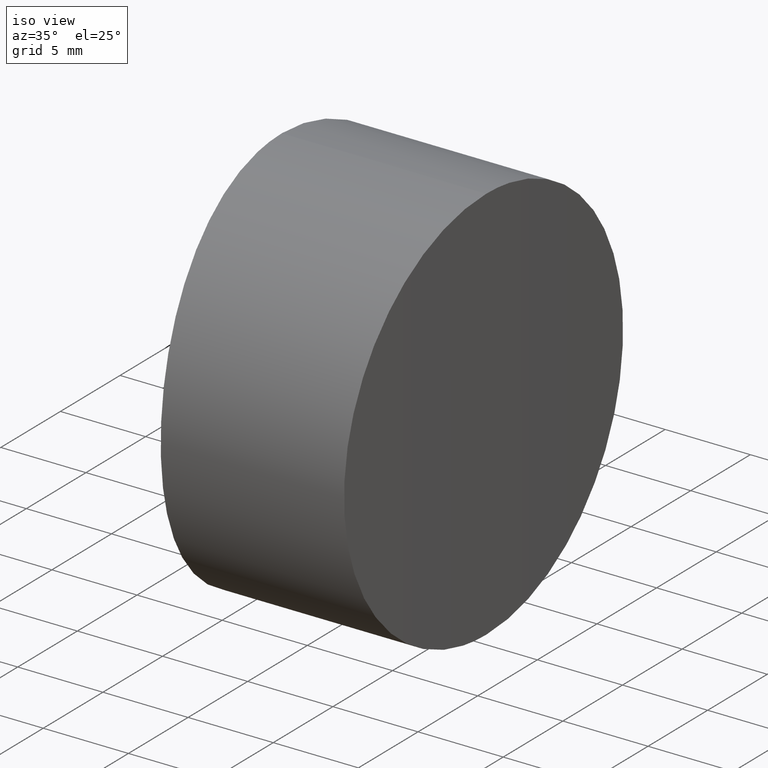
[diagram: clean part render]
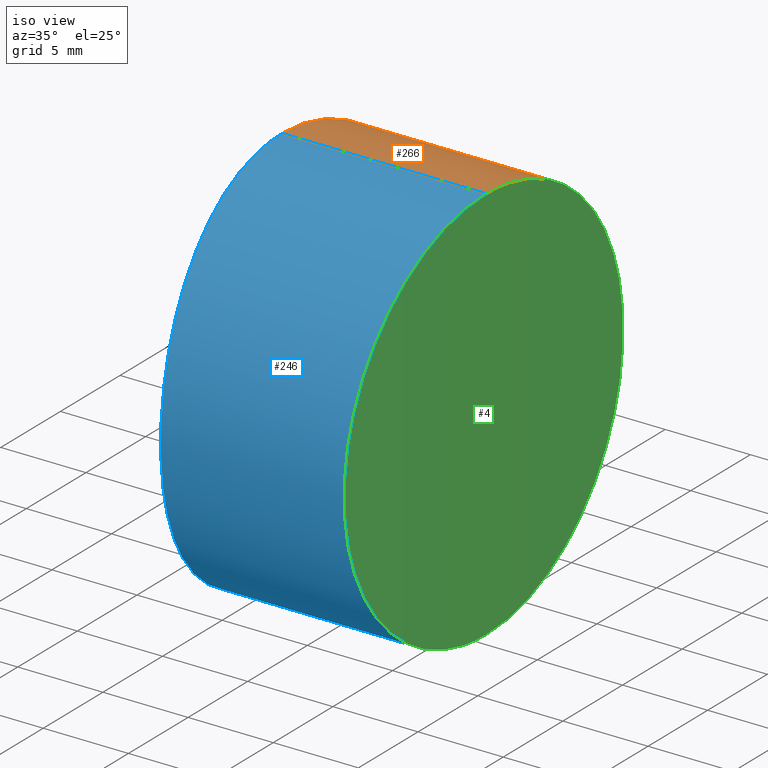
[diagram: same view with three faces highlighted in distinct colors, each labeled with its STEP entity id]
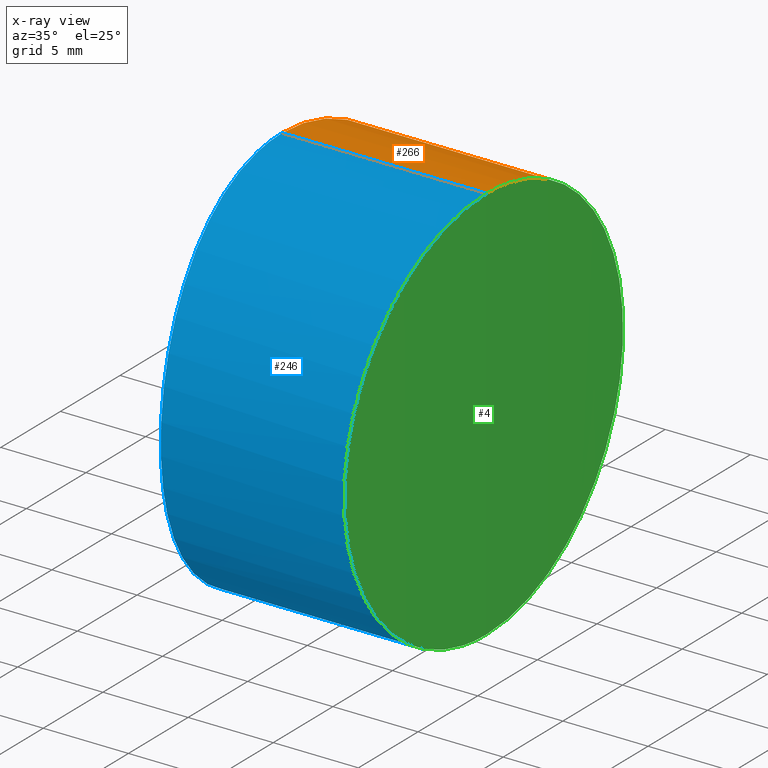
[diagram: x-ray of the same camera — body ghosted, the three highlighted faces saturated]
A machine part, iso view with three faces highlighted in distinct colors.
The next image is the same camera in x-ray (body ghosted, the three faces saturated) — at least one of them is partly hidden behind the body in this view.
Their STEP definitions:

[orange] entity #266 — the highlighted cylindrical surface (partial cylindrical patch) has radius 11.7 mm, axis along (-1, 0, 0).
#1 = VERTEX_POINT ( 'NONE', #11 ) ;
#3 = VERTEX_POINT ( 'NONE', #39 ) ;
#9 = B_SPLINE_CURVE_WITH_KNOTS ( 'NONE', 3,
 ( #271, #326, #267, #180, #209, #22, #183, #207, #349, #293, #150, #94, #182, #295, #73, #298, #214, #80, #79, #190, #368, #52, #31, #137, #102, #306, #170, #78, #308, #250, #218, #275, #192, #194, #337, #251, #111, #54, #189, #163, #105, #277, #332, #104, #34, #56, #165, #216, #367, #196 ),
 .UNSPECIFIED., .F., .F.,
 ( 4, 2, 2, 2, 2, 2, 2, 2, 2, 2, 2, 2, 2, 2, 2, 2, 2, 2, 2, 2, 2, 2, 2, 2, 4 ),
 ( 0.01831599988752188185, 0.02060547553135329280, 0.02175021335326899827, 0.02289495117518470374, 0.02518442681901610775, 0.02632916464093180975, 0.02747390246284751175, 0.02976337810667891576, 0.03090811592859461082, 0.03205285375051031282, 0.03319759157242600095, 0.03434232939434168907, 0.03663180503817306533, 0.03892128068200442770, 0.04006601850392012276, 0.04121075632583580395, 0.04350023196966717326, 0.04464496979158286138, 0.04578970761349854257, 0.04807918325732991188, 0.04922392107924558613, 0.05036865890116127426, 0.05151339672307694850, 0.05265813454499263663, 0.05494761018882399206 ),
 .UNSPECIFIED. ) ;
#11 = CARTESIAN_POINT ( 'NONE',  ( -4.141137470945756404E-15, 4.814824860968089633E-32, 23.39999999999999858 ) ) ;
#13 = CARTESIAN_POINT ( 'NONE',  ( 11.90266896472223479, 9.294098048287919411, 4.551519268912568528 ) ) ;
#15 = CARTESIAN_POINT ( 'NONE',  ( 11.85559141822895057, 11.30907044421302032, 14.72361144962169632 ) ) ;
#18 = CARTESIAN_POINT ( 'NONE',  ( 11.99797989767577100, 1.532198111005650842, 0.07576651229441833113 ) ) ;
#20 = CARTESIAN_POINT ( 'NONE',  ( 11.84541834037370656, 11.70000033894850944, 10.92745186898158849 ) ) ;
#22 = CARTESIAN_POINT ( 'NONE',  ( 0.1100339158327923450, 3.764217242686987763, 22.78459916596429480 ) ) ;
#31 = CARTESIAN_POINT ( 'NONE',  ( 1.025710354058789520, 11.39674364517045824, 14.37450342461144537 ) ) ;
#34 = CARTESIAN_POINT ( 'NONE',  ( 0.1111153580869819330, 3.782338671004104480, 0.6216161284350090188 ) ) ;
#37 = FACE_OUTER_BOUND ( 'NONE', #232, .T. ) ;
#39 = CARTESIAN_POINT ( 'NONE',  ( 12.00000000000001066, -6.071532165918824830E-15, 23.39999999999999858 ) ) ;
#42 = CARTESIAN_POINT ( 'NONE',  ( 11.94276215557282406, 7.148481470052774789, 20.99409744516482945 ) ) ;
#44 = CARTESIAN_POINT ( 'NONE',  ( 11.96979345468721512, 5.183347323345775415, 22.19616075981758385 ) ) ;
#46 = CARTESIAN_POINT ( 'NONE',  ( 11.84743919648463972, 11.62423290935528719, 13.23220228897018735 ) ) ;
#49 = CARTESIAN_POINT ( 'NONE',  ( 11.98968271147868236, 3.044970454933423998, 23.00329363630080337 ) ) ;
#51 = CARTESIAN_POINT ( 'NONE',  ( 11.85331045889657275, 11.39771877460090188, 9.029700815475553810 ) ) ;
#52 = CARTESIAN_POINT ( 'NONE',  ( 1.008522343171336155, 11.30193165812209521, 14.75007937927995272 ) ) ;
#54 = CARTESIAN_POINT ( 'NONE',  ( 0.4684883951319335216, 7.738047452522830660, 2.891381902380681712 ) ) ;
#55 = EDGE_CURVE ( 'NONE', #255, #3, #313, .T. ) ;
#56 = CARTESIAN_POINT ( 'NONE',  ( 0.07184943639137708615, 3.049750022382518466, 0.3979780645717091447 ) ) ;
#65 = ORIENTED_EDGE ( 'NONE', *, *, #286, .F. ) ;
#66 = CARTESIAN_POINT ( 'NONE',  ( 12.00000000000003197, -4.638695410916216442E-15, -1.788563021273998791E-15 ) ) ;
#69 = CARTESIAN_POINT ( 'NONE',  ( 11.99221032149289989, 2.653094214018588026, 0.2984123956986844406 ) ) ;
#70 = CARTESIAN_POINT ( 'NONE',  ( 11.86121844948013404, 11.08660328912975501, 15.45826130277196597 ) ) ;
#73 = CARTESIAN_POINT ( 'NONE',  ( 0.6785997896842796973, 9.292474037727778580, 18.85056146131066868 ) ) ;
#74 = EDGE_CURVE ( 'NONE', #1, #176, #9, .T. ) ;
#75 = CARTESIAN_POINT ( 'NONE',  ( 12.00000000000001066, -6.071532165918824830E-15, 23.39999999999999858 ) ) ;
#77 = CARTESIAN_POINT ( 'NONE',  ( 11.87563339757227432, 10.49616172792749147, 6.516654622477914494 ) ) ;
#78 = CARTESIAN_POINT ( 'NONE',  ( 1.026414140923044949, 11.40061258494911378, 9.042634308618957562 ) ) ;
#79 = CARTESIAN_POINT ( 'NONE',  ( 0.8957970043385233838, 10.65683016532315364, 16.54425974039513036 ) ) ;
#80 = CARTESIAN_POINT ( 'NONE',  ( 0.8682889769007170466, 10.49364479988191334, 16.88838741628939388 ) ) ;
#89 = DIRECTION ( 'NONE',  ( -1.000000000000000000, 0.000000000000000000, 0.000000000000000000 ) ) ;
#94 = CARTESIAN_POINT ( 'NONE',  ( 0.4677226936709020788, 7.718515927347942451, 20.50125899044055444 ) ) ;
#96 = CARTESIAN_POINT ( 'NONE',  ( 11.86137659567452829, 11.08028904453837171, 7.923296814221150619 ) ) ;
#98 = CARTESIAN_POINT ( 'NONE',  ( 11.86447957231710504, 10.95602171745500186, 15.82340341953417173 ) ) ;
#99 = CARTESIAN_POINT ( 'NONE',  ( 11.88370919565577211, 10.15705905060290704, 17.55730635795992711 ) ) ;
#102 = CARTESIAN_POINT ( 'NONE',  ( 1.081542210308438223, 11.69996280312990500, 12.47480324105825211 ) ) ;
#104 = CARTESIAN_POINT ( 'NONE',  ( 0.1335122062099375340, 4.141155619625081385, 0.7507651319455752592 ) ) ;
#105 = CARTESIAN_POINT ( 'NONE',  ( 0.2688572339797530297, 5.861878724672397567, 1.567164511781534042 ) ) ;
#106 = VECTOR ( 'NONE', #288, 1000.000000000000000 ) ;
#111 = CARTESIAN_POINT ( 'NONE',  ( 0.5740064325487794772, 8.544941003837504212, 3.698827208918880061 ) ) ;
#123 = CARTESIAN_POINT ( 'NONE',  ( 11.91256810610465422, 8.802901343263906497, 19.41670357200841934 ) ) ;
#125 = CARTESIAN_POINT ( 'NONE',  ( 11.93286356305509344, 7.716703338196643003, 2.897098441939794267 ) ) ;
#127 = CARTESIAN_POINT ( 'NONE',  ( 11.86781053467307956, 10.82252309196300821, 7.205863914029142059 ) ) ;
#130 = CARTESIAN_POINT ( 'NONE',  ( 11.91762167475737932, 8.545694809131465064, 19.70041068464083267 ) ) ;
#131 = CARTESIAN_POINT ( 'NONE',  ( 11.98420489333905081, 3.758258497446238078, 0.6133957528136816384 ) ) ;
#137 = CARTESIAN_POINT ( 'NONE',  ( 1.067203313690765709, 11.62382308339560133, 13.24002404328200200 ) ) ;
#138 = AXIS2_PLACEMENT_3D ( 'NONE', #345, #89, #177 ) ;
#142 = ORIENTED_EDGE ( 'NONE', *, *, #74, .F. ) ;
#145 = CYLINDRICAL_SURFACE ( 'NONE', #138, 11.70000000000000107 ) ;
#150 = CARTESIAN_POINT ( 'NONE',  ( 0.3981689191743061351, 7.124406981371271819, 20.98872828224202181 ) ) ;
#152 = CARTESIAN_POINT ( 'NONE',  ( 12.00000000000003197, -4.638695410916216442E-15, -1.788563021273998791E-15 ) ) ;
#155 = CARTESIAN_POINT ( 'NONE',  ( 11.98094466327580676, 4.123400861991977528, 0.7439773119322827810 ) ) ;
#158 = CARTESIAN_POINT ( 'NONE',  ( 11.92781016650106984, 8.000410616664055397, 3.154305117714783169 ) ) ;
#161 = CARTESIAN_POINT ( 'NONE',  ( 11.99797879093489961, 1.536674749370493753, 23.32422445135426869 ) ) ;
#163 = CARTESIAN_POINT ( 'NONE',  ( 0.3003457094849010245, 6.192893276235527544, 1.765929436772951888 ) ) ;
#165 = CARTESIAN_POINT ( 'NONE',  ( 0.05492192851692936223, 2.674131640314133751, 0.3031681954580890404 ) ) ;
#169 = VECTOR ( 'NONE', #231, 1000.000000000000000 ) ;
#170 = CARTESIAN_POINT ( 'NONE',  ( 1.067236217900912276, 11.62396760654867833, 10.16519838375646145 ) ) ;
#176 = VERTEX_POINT ( 'NONE', #314 ) ;
#177 = DIRECTION ( 'NONE',  ( 0.000000000000000000, 0.000000000000000000, 1.000000000000000000 ) ) ;
#178 = LINE ( 'NONE', #225, #106 ) ;
#180 = CARTESIAN_POINT ( 'NONE',  ( 0.05426186377902143809, 2.657774608410733652, 23.10051677240513612 ) ) ;
#182 = CARTESIAN_POINT ( 'NONE',  ( 0.5029490305265813532, 8.001384462997222613, 20.24474195709654367 ) ) ;
#183 = CARTESIAN_POINT ( 'NONE',  ( 0.1327326767961985177, 4.129351899207494014, 22.65377653467380625 ) ) ;
#186 = CARTESIAN_POINT ( 'NONE',  ( 11.96137946831886012, 5.858227425997719173, 21.83497171163582706 ) ) ;
#188 = CARTESIAN_POINT ( 'NONE',  ( 11.85321064016941328, 11.40158678626422883, 14.35309769921891743 ) ) ;
#189 = CARTESIAN_POINT ( 'NONE',  ( 0.3985848349146317027, 7.150699528538130068, 2.407624814040593364 ) ) ;
#190 = CARTESIAN_POINT ( 'NONE',  ( 0.9460004861012448751, 10.94915699827301481, 15.84135758322359067 ) ) ;
#192 = CARTESIAN_POINT ( 'NONE',  ( 0.8114999302225849309, 10.15448204762939355, 5.838293511852547191 ) ) ;
#194 = CARTESIAN_POINT ( 'NONE',  ( 0.7133867423174090616, 9.518451288816363487, 4.885686959448193534 ) ) ;
#196 = CARTESIAN_POINT ( 'NONE',  ( -3.371327084254926024E-31, -2.998293745295732884E-46, -1.734723475976806503E-15 ) ) ;
#198 = CARTESIAN_POINT ( 'NONE',  ( 23.39999999999999858, -4.638695410916421546E-15, -1.734723475976807094E-15 ) ) ;
#203 = CARTESIAN_POINT ( 'NONE',  ( 11.88858046186468087, 9.935708410204503238, 5.509728825740272562 ) ) ;
#204 = EDGE_CURVE ( 'NONE', #255, #176, #290, .T. ) ;
#206 = CARTESIAN_POINT ( 'NONE',  ( 11.98983028877765733, 3.023608192814065898, 0.3909286781051630744 ) ) ;
#207 = CARTESIAN_POINT ( 'NONE',  ( 0.2074854425515398615, 5.190936528662664529, 22.21338422543529845 ) ) ;
#209 = CARTESIAN_POINT ( 'NONE',  ( 0.07084039503655555070, 3.028756778212302603, 23.00770986976015919 ) ) ;
#212 = CARTESIAN_POINT ( 'NONE',  ( 11.93273922164211065, 7.736897765381542946, 20.50978413713756510 ) ) ;
#214 = CARTESIAN_POINT ( 'NONE',  ( 0.8092102450630115351, 10.13283206185210439, 17.56188191401881582 ) ) ;
#216 = CARTESIAN_POINT ( 'NONE',  ( 0.01408231954619071011, 1.539564506424921042, 0.07611244146153543777 ) ) ;
#218 = CARTESIAN_POINT ( 'NONE',  ( 0.9468271716712995945, 10.95391205503530507, 7.571007250231789776 ) ) ;
#225 = CARTESIAN_POINT ( 'NONE',  ( 23.39999999999999858, -6.071532165918824830E-15, 23.39999999999999858 ) ) ;
#231 = DIRECTION ( 'NONE',  ( -1.000000000000000000, 0.000000000000000000, 0.000000000000000000 ) ) ;
#232 = EDGE_LOOP ( 'NONE', ( #257, #343, #142, #65 ) ) ;
#236 = CARTESIAN_POINT ( 'NONE',  ( 11.84541835828978940, 11.69999966104922784, 12.47255839752297035 ) ) ;
#239 = CARTESIAN_POINT ( 'NONE',  ( 12.00000000000000711, 0.7725546029261970427, 23.39999999999999858 ) ) ;
#241 = CARTESIAN_POINT ( 'NONE',  ( 11.94773814338287998, 6.810796325660926520, 2.179021838308813575 ) ) ;
#242 = CARTESIAN_POINT ( 'NONE',  ( 11.84744027413592349, 11.62422503488681613, 10.16332946362656031 ) ) ;
#243 = CARTESIAN_POINT ( 'NONE',  ( 11.85573899501745387, 11.30329453074453561, 8.655032838398785344 ) ) ;
#250 = CARTESIAN_POINT ( 'NONE',  ( 0.9698303899264451022, 11.08472443355276482, 7.936150661786808946 ) ) ;
#251 = CARTESIAN_POINT ( 'NONE',  ( 0.6092933335380218418, 8.801458843230090423, 3.981711675613416546 ) ) ;
#255 = VERTEX_POINT ( 'NONE', #66 ) ;
#257 = ORIENTED_EDGE ( 'NONE', *, *, #55, .F. ) ;
#264 = CARTESIAN_POINT ( 'NONE',  ( 12.00000000000003197, 0.7725537479216195713, -1.707618421664669484E-15 ) ) ;
#265 = CARTESIAN_POINT ( 'NONE',  ( 11.97020493520249396, 5.185582584361702274, 1.183954902089491501 ) ) ;
#266 = ADVANCED_FACE ( 'NONE', ( #37 ), #145, .T. ) ;
#267 = CARTESIAN_POINT ( 'NONE',  ( 0.01407359253411141417, 1.535261948755882511, 23.32390489193353034 ) ) ;
#269 = CARTESIAN_POINT ( 'NONE',  ( 11.88404901594691232, 10.13497260735240246, 5.841774110730635350 ) ) ;
#271 = CARTESIAN_POINT ( 'NONE',  ( -4.141137470945756404E-15, 4.814824860968089633E-32, 23.39999999999999858 ) ) ;
#275 = CARTESIAN_POINT ( 'NONE',  ( 0.8711706772589573600, 10.51354976959134824, 6.509397627377802920 ) ) ;
#277 = CARTESIAN_POINT ( 'NONE',  ( 0.2103290767897942060, 5.188308858307170368, 1.206314832010738414 ) ) ;
#286 = EDGE_CURVE ( 'NONE', #3, #1, #178, .T. ) ;
#288 = DIRECTION ( 'NONE',  ( -1.000000000000000000, 0.000000000000000000, 0.000000000000000000 ) ) ;
#290 = LINE ( 'NONE', #198, #169 ) ;
#293 = CARTESIAN_POINT ( 'NONE',  ( 0.3640360772811893075, 6.814584208766814477, 21.21825673011209901 ) ) ;
#295 = CARTESIAN_POINT ( 'NONE',  ( 0.6084606498317665091, 8.808771015854707898, 19.43786966435053287 ) ) ;
#298 = CARTESIAN_POINT ( 'NONE',  ( 0.7774675865426415866, 9.934088213814401769, 17.89286218953806085 ) ) ;
#301 = CARTESIAN_POINT ( 'NONE',  ( 11.89769234496319328, 9.520977591338080970, 18.51079711101027669 ) ) ;
#302 = CARTESIAN_POINT ( 'NONE',  ( 11.94285155712791635, 7.120556543425663243, 2.408269226752639547 ) ) ;
#306 = CARTESIAN_POINT ( 'NONE',  ( 1.081556077748250466, 11.70003716988455267, 10.92632055714421746 ) ) ;
#308 = CARTESIAN_POINT ( 'NONE',  ( 1.009581788286345150, 11.30781576461291671, 8.671637366143015058 ) ) ;
#313 = B_SPLINE_CURVE_WITH_KNOTS ( 'NONE', 3,
 ( #152, #264, #18, #69, #206, #131, #155, #265, #324, #241, #302, #125, #158, #355, #13, #203, #269, #77, #127, #96, #243, #51, #242, #20, #236, #46, #188, #15, #70, #98, #358, #99, #301, #361, #123, #130, #212, #42, #329, #186, #44, #331, #353, #49, #323, #161, #239, #75 ),
 .UNSPECIFIED., .F., .F.,
 ( 4, 2, 2, 2, 2, 2, 2, 2, 2, 1, 2, 2, 2, 2, 2, 2, 2, 2, 2, 2, 2, 1, 2, 2, 4 ),
 ( 0.03655612345824955228, 0.03884088370298873633, 0.03998326382535832835, 0.04112564394772791343, 0.04341040419246709747, 0.04455278431483668949, 0.04569516443720628152, 0.04797992468194545862, 0.04912230480431505064, 0.05026468492668463572, 0.05140706504905422081, 0.05254944517142380589, 0.05483420541616297605, 0.05711896566090214622, 0.05826134578327173130, 0.05940372590564131638, 0.06168848615038049349, 0.06283086627275008551, 0.06397324639511968447, 0.06625800663985886851, 0.06740038676222845360, 0.06854276688459803868, 0.06968514700696763764, 0.07082752712933723660, 0.07311228737407640677 ),
 .UNSPECIFIED. ) ;
#314 = CARTESIAN_POINT ( 'NONE',  ( -3.371327084254926024E-31, -2.998293745295732884E-46, -1.734723475976806503E-15 ) ) ;
#323 = CARTESIAN_POINT ( 'NONE',  ( 11.99211049170124710, 2.670302733118707028, 23.09771793644246785 ) ) ;
#324 = CARTESIAN_POINT ( 'NONE',  ( 11.96171942458488857, 5.857304976164543042, 1.542940120470600807 ) ) ;
#326 = CARTESIAN_POINT ( 'NONE',  ( -4.135638364969119828E-15, 0.7742577858614263508, 23.39999999999998792 ) ) ;
#329 = CARTESIAN_POINT ( 'NONE',  ( 11.95684877884395192, 6.190272512008268890, 21.63570756861592059 ) ) ;
#331 = CARTESIAN_POINT ( 'NONE',  ( 11.97761456054506191, 4.494138454524639670, 22.52252208714074655 ) ) ;
#332 = CARTESIAN_POINT ( 'NONE',  ( 0.1831184540706564390, 4.844140847081034984, 1.043114267507031068 ) ) ;
#337 = CARTESIAN_POINT ( 'NONE',  ( 0.6790799844408597075, 9.288919877889256327, 4.575842510893705750 ) ) ;
#343 = ORIENTED_EDGE ( 'NONE', *, *, #204, .T. ) ;
#345 = CARTESIAN_POINT ( 'NONE',  ( 23.39999999999999858, -6.071532165918824830E-15, 11.69999999999999751 ) ) ;
#349 = CARTESIAN_POINT ( 'NONE',  ( 0.2665637725111152379, 5.862022609321733135, 21.85429797684675179 ) ) ;
#353 = CARTESIAN_POINT ( 'NONE',  ( 11.98404674281963089, 3.776706007697698375, 22.78028807528378508 ) ) ;
#355 = CARTESIAN_POINT ( 'NONE',  ( 11.91269261492651488, 8.809784513702972220, 3.963102621366470846 ) ) ;
#358 = CARTESIAN_POINT ( 'NONE',  ( 11.87522195008664205, 10.51604416444042123, 16.88558440928556337 ) ) ;
#361 = CARTESIAN_POINT ( 'NONE',  ( 11.90257943451155676, 9.291730301227858035, 18.82055714721319006 ) ) ;
#367 = CARTESIAN_POINT ( 'NONE',  ( -5.505714157152894272E-17, 0.7742894317568913554, -1.639479326796658412E-15 ) ) ;
#368 = CARTESIAN_POINT ( 'NONE',  ( 0.9686970710086086900, 11.07829889985756822, 15.48258336460492224 ) ) ;

[blue] entity #246 — the highlighted cylindrical surface (partial cylindrical patch) has radius 11.7 mm, axis along (-1, 0, 0).
#1 = VERTEX_POINT ( 'NONE', #11 ) ;
#2 = CARTESIAN_POINT ( 'NONE',  ( 0.3981970890931836871, -7.124657941792813531, 2.411463626641665581 ) ) ;
#3 = VERTEX_POINT ( 'NONE', #39 ) ;
#5 = CARTESIAN_POINT ( 'NONE',  ( 5.872761767629793087E-17, -0.7742894314466612915, -1.807003620809167088E-15 ) ) ;
#7 = CARTESIAN_POINT ( 'NONE',  ( 11.93273922164229184, -7.736897765381551828, 2.890215862862425489 ) ) ;
#10 = CARTESIAN_POINT ( 'NONE',  ( 1.026387645812687266, -11.40046676091581723, 14.35798906311860534 ) ) ;
#11 = CARTESIAN_POINT ( 'NONE',  ( -4.141137470945756404E-15, 4.814824860968089633E-32, 23.39999999999999858 ) ) ;
#12 = CARTESIAN_POINT ( 'NONE',  ( 1.081551584451778902, -11.70001307373700783, 10.92592246693983249 ) ) ;
#14 = CARTESIAN_POINT ( 'NONE',  ( 0.8114595024342564633, -10.15423156406627214, 17.56213665283064174 ) ) ;
#16 = AXIS2_PLACEMENT_3D ( 'NONE', #64, #284, #113 ) ;
#17 = CARTESIAN_POINT ( 'NONE',  ( 1.081546708014796465, -11.69998692292639397, 12.47447269555279092 ) ) ;
#19 = CARTESIAN_POINT ( 'NONE',  ( 1.025737339041762564, -11.39689221130534591, 9.026127710991007191 ) ) ;
#24 = CARTESIAN_POINT ( 'NONE',  ( 11.98420489333911121, -3.758258497446244739, 22.78660424718631461 ) ) ;
#26 = CARTESIAN_POINT ( 'NONE',  ( 11.98983028877770529, -3.023608192814073004, 23.00907132189484017 ) ) ;
#35 = CARTESIAN_POINT ( 'NONE',  ( 11.99211049170135190, -2.670302733118725236, 0.3022820635575224069 ) ) ;
#36 = ORIENTED_EDGE ( 'NONE', *, *, #204, .F. ) ;
#38 = CARTESIAN_POINT ( 'NONE',  ( 11.88404901594715746, -10.13497260735241490, 17.55822588926936234 ) ) ;
#39 = CARTESIAN_POINT ( 'NONE',  ( 12.00000000000001066, -6.071532165918824830E-15, 23.39999999999999858 ) ) ;
#40 = CARTESIAN_POINT ( 'NONE',  ( 11.85331045889685697, -11.39771877460091076, 14.37029918452445010 ) ) ;
#41 = CARTESIAN_POINT ( 'NONE',  ( 11.91762167475757472, -8.545694809131473946, 3.699589315359165465 ) ) ;
#43 = CARTESIAN_POINT ( 'NONE',  ( 0.05491749648948490020, -2.674023807851463097, 23.09685656371595996 ) ) ;
#45 = CARTESIAN_POINT ( 'NONE',  ( 0.8958352716320909792, -10.65705598267314080, 6.856235823301516596 ) ) ;
#48 = CARTESIAN_POINT ( 'NONE',  ( 0.2103131712000086140, -5.188113125018478655, 22.19378134776713907 ) ) ;
#50 = CARTESIAN_POINT ( 'NONE',  ( 1.067220561995215755, -11.62391570664929752, 10.16066117411337544 ) ) ;
#61 = CARTESIAN_POINT ( 'NONE',  ( 11.97020493520258455, -5.185582584361715597, 22.21604509791049864 ) ) ;
#62 = CARTESIAN_POINT ( 'NONE',  ( 12.00000000000003197, -4.638695410916216442E-15, -1.788563021273998791E-15 ) ) ;
#63 = CARTESIAN_POINT ( 'NONE',  ( 11.85559141822917972, -11.30907044421303631, 8.676388550378311137 ) ) ;
#64 = CARTESIAN_POINT ( 'NONE',  ( 23.39999999999999858, -6.071532165918824830E-15, 11.69999999999999751 ) ) ;
#66 = CARTESIAN_POINT ( 'NONE',  ( 12.00000000000003197, -4.638695410916216442E-15, -1.788563021273998791E-15 ) ) ;
#67 = CARTESIAN_POINT ( 'NONE',  ( 11.86121844948034898, -11.08660328912977455, 7.941738697228045041 ) ) ;
#68 = ORIENTED_EDGE ( 'NONE', *, *, #187, .F. ) ;
#72 = CARTESIAN_POINT ( 'NONE',  ( 1.067219123685523519, -11.62387579051964437, 13.23548185016591283 ) ) ;
#82 = CARTESIAN_POINT ( 'NONE',  ( 12.00000000000001066, -6.071532165918824830E-15, 23.39999999999999858 ) ) ;
#84 = CARTESIAN_POINT ( 'NONE',  ( 11.99797989767582784, -1.532198111005662167, 23.32423348770556970 ) ) ;
#85 = CARTESIAN_POINT ( 'NONE',  ( 11.91256810610482297, -8.802901343263922485, 3.983296427991584565 ) ) ;
#86 = CARTESIAN_POINT ( 'NONE',  ( 11.86447957231735550, -10.95602171745501430, 7.576596580465837505 ) ) ;
#87 = CARTESIAN_POINT ( 'NONE',  ( 0.6084979537039918451, -8.809038990309202788, 3.962432468067241143 ) ) ;
#88 = CARTESIAN_POINT ( 'NONE',  ( 11.86137659567475922, -11.08028904453837882, 15.47670318577885951 ) ) ;
#91 = CARTESIAN_POINT ( 'NONE',  ( 0.6790403438742310671, -9.288650379819989311, 18.82450790322400280 ) ) ;
#95 = CARTESIAN_POINT ( 'NONE',  ( 0.3985569807442610468, -7.150451226027964680, 20.99256389016858648 ) ) ;
#97 = CARTESIAN_POINT ( 'NONE',  ( 0.9687309557182917086, -11.07849100994933167, 7.917977516903819790 ) ) ;
#106 = VECTOR ( 'NONE', #288, 1000.000000000000000 ) ;
#112 = CYLINDRICAL_SURFACE ( 'NONE', #16, 11.70000000000000107 ) ;
#113 = DIRECTION ( 'NONE',  ( 0.000000000000000000, 0.000000000000000000, 1.000000000000000000 ) ) ;
#114 = CARTESIAN_POINT ( 'NONE',  ( 0.5029821284131045234, -8.001646464694838201, 3.155502726020757542 ) ) ;
#115 = CARTESIAN_POINT ( 'NONE',  ( 0.05426621681067881481, -2.657881137944721583, 0.2995075387829124747 ) ) ;
#116 = CARTESIAN_POINT ( 'NONE',  ( 11.97761456054518980, -4.494138454524650328, 0.8774779128592505861 ) ) ;
#119 = CARTESIAN_POINT ( 'NONE',  ( 0.1831044886453035148, -4.843956489648163277, 22.35696897804074723 ) ) ;
#128 = CARTESIAN_POINT ( 'NONE',  ( 0.1111066559077999311, -3.782190799505586121, 22.77843383283525114 ) ) ;
#133 = CARTESIAN_POINT ( 'NONE',  ( 11.93286356305524798, -7.716703338196643003, 20.50290155806021275 ) ) ;
#134 = CARTESIAN_POINT ( 'NONE',  ( 11.98094466327587782, -4.123400861991987298, 22.65602268806771136 ) ) ;
#139 = CARTESIAN_POINT ( 'NONE',  ( 12.00000000000001776, -0.7725537479216294523, 23.39999999999999503 ) ) ;
#140 = CARTESIAN_POINT ( 'NONE',  ( 11.94285155712805846, -7.120556543425660578, 20.99173077324736525 ) ) ;
#141 = CARTESIAN_POINT ( 'NONE',  ( 0.2075012138276752516, -5.191132963068326944, 1.186710588237356534 ) ) ;
#143 = CARTESIAN_POINT ( 'NONE',  ( 0.01407474214998844647, -1.535324166572834548, 0.07610126892112316355 ) ) ;
#146 = CARTESIAN_POINT ( 'NONE',  ( 11.87563339757252479, -10.49616172792750568, 16.88334537752207964 ) ) ;
#148 = CARTESIAN_POINT ( 'NONE',  ( 11.85573899501768658, -11.30329453074455337, 14.74496716160122034 ) ) ;
#149 = CARTESIAN_POINT ( 'NONE',  ( 0.2688372582671491040, -5.861661511095389798, 21.83296052997726733 ) ) ;
#151 = CARTESIAN_POINT ( 'NONE',  ( -4.141137470945756404E-15, 4.814824860968089633E-32, 23.39999999999999858 ) ) ;
#154 = CARTESIAN_POINT ( 'NONE',  ( 0.01408116879446164385, -1.539501943900539072, 23.32389371941326317 ) ) ;
#157 = CARTESIAN_POINT ( 'NONE',  ( 0.8711310958146454286, -10.51331334070105150, 16.89107597017361329 ) ) ;
#169 = VECTOR ( 'NONE', #231, 1000.000000000000000 ) ;
#171 = CARTESIAN_POINT ( 'NONE',  ( 11.96171942458501647, -5.857304976164549259, 21.85705987952940177 ) ) ;
#172 = CARTESIAN_POINT ( 'NONE',  ( 0.07084606275923394092, -3.028877816930000577, 0.3923219977631742794 ) ) ;
#174 = CARTESIAN_POINT ( 'NONE',  ( 12.00000000000003553, -0.7725528929179942272, -1.954952042262922816E-15 ) ) ;
#175 = CARTESIAN_POINT ( 'NONE',  ( 11.84541834037393926, -11.70000033894852187, 12.47254813101841364 ) ) ;
#176 = VERTEX_POINT ( 'NONE', #314 ) ;
#178 = LINE ( 'NONE', #225, #106 ) ;
#185 = CARTESIAN_POINT ( 'NONE',  ( 0.7133468049485044427, -9.518186587334058757, 18.51468196521151199 ) ) ;
#187 = EDGE_CURVE ( 'NONE', #3, #255, #360, .T. ) ;
#197 = FACE_OUTER_BOUND ( 'NONE', #262, .T. ) ;
#198 = CARTESIAN_POINT ( 'NONE',  ( 23.39999999999999858, -4.638695410916421546E-15, -1.734723475976807094E-15 ) ) ;
#199 = CARTESIAN_POINT ( 'NONE',  ( 0.6786392442632364075, -9.292741892843077167, 4.549782761914097584 ) ) ;
#201 = CARTESIAN_POINT ( 'NONE',  ( 11.89769234496333006, -9.520977591338100510, 4.889202888989719220 ) ) ;
#202 = CARTESIAN_POINT ( 'NONE',  ( 11.88370919565592132, -10.15705905060291947, 5.842693642040068802 ) ) ;
#204 = EDGE_CURVE ( 'NONE', #255, #176, #290, .T. ) ;
#208 = CARTESIAN_POINT ( 'NONE',  ( 1.008551935788915666, -11.30209599237799623, 8.650527373586283986 ) ) ;
#211 = CARTESIAN_POINT ( 'NONE',  ( 0.8683281989168448733, -10.49387996813886481, 6.512087202741692948 ) ) ;
#225 = CARTESIAN_POINT ( 'NONE',  ( 23.39999999999999858, -6.071532165918824830E-15, 23.39999999999999858 ) ) ;
#226 = CARTESIAN_POINT ( 'NONE',  ( 11.96979345468729861, -5.183347323345785185, 1.203839240182405845 ) ) ;
#227 = CARTESIAN_POINT ( 'NONE',  ( 11.99797879093497777, -1.536674749370507298, 0.07577554864572950966 ) ) ;
#229 = CARTESIAN_POINT ( 'NONE',  ( 11.84541835829002032, -11.69999966104923672, 10.92744160247703178 ) ) ;
#231 = DIRECTION ( 'NONE',  ( -1.000000000000000000, 0.000000000000000000, 0.000000000000000000 ) ) ;
#233 = CARTESIAN_POINT ( 'NONE',  ( 0.8092507048641326417, -10.13308353008049245, 5.838551872610818094 ) ) ;
#235 = CARTESIAN_POINT ( 'NONE',  ( 0.9697962851570927079, -11.08453120251869883, 15.46441701525430901 ) ) ;
#238 = CARTESIAN_POINT ( 'NONE',  ( 1.009552524960164011, -11.30765336064577475, 14.72896730253449782 ) ) ;
#240 = CARTESIAN_POINT ( 'NONE',  ( 0.6092559624863964629, -8.801190405573361630, 19.41859353680932543 ) ) ;
#245 = CARTESIAN_POINT ( 'NONE',  ( 11.92781016650129366, -8.000410616664060726, 20.24569488228521408 ) ) ;
#246 = ADVANCED_FACE ( 'NONE', ( #197 ), #112, .T. ) ;
#247 = CARTESIAN_POINT ( 'NONE',  ( 11.90266896472246572, -9.294098048287924740, 18.84848073108743804 ) ) ;
#253 = CARTESIAN_POINT ( 'NONE',  ( 0.2665835727268308641, -5.862239177635413689, 1.545824589513390634 ) ) ;
#254 = CARTESIAN_POINT ( 'NONE',  ( 0.1100426656957044919, -3.764366742370646612, 0.6154510393478311858 ) ) ;
#255 = VERTEX_POINT ( 'NONE', #66 ) ;
#256 = CARTESIAN_POINT ( 'NONE',  ( 11.98404674281970905, -3.776706007697707257, 0.6197119247162145017 ) ) ;
#258 = CARTESIAN_POINT ( 'NONE',  ( 11.86781037237589409, -10.82252292967670648, 16.19413602083880832 ) ) ;
#261 = CARTESIAN_POINT ( 'NONE',  ( 0.9460360846187387818, -10.94936128530218689, 7.559181112240893619 ) ) ;
#262 = EDGE_LOOP ( 'NONE', ( #36, #68, #316, #319 ) ) ;
#282 = CARTESIAN_POINT ( 'NONE',  ( 11.94773814338302387, -6.810796325660930073, 21.22097816169119255 ) ) ;
#283 = CARTESIAN_POINT ( 'NONE',  ( 0.1327431232767601055, -4.129514016409650878, 0.7462840591783612698 ) ) ;
#284 = DIRECTION ( 'NONE',  ( -1.000000000000000000, 0.000000000000000000, 0.000000000000000000 ) ) ;
#286 = EDGE_CURVE ( 'NONE', #3, #1, #178, .T. ) ;
#288 = DIRECTION ( 'NONE',  ( -1.000000000000000000, 0.000000000000000000, 0.000000000000000000 ) ) ;
#290 = LINE ( 'NONE', #198, #169 ) ;
#291 = CARTESIAN_POINT ( 'NONE',  ( 11.94276215557294485, -7.148481470052803211, 2.405902554835172236 ) ) ;
#296 = CARTESIAN_POINT ( 'NONE',  ( -4.129944421268135128E-15, -0.7742577855512007279, 23.39999999999999858 ) ) ;
#300 = CARTESIAN_POINT ( 'NONE',  ( 0.5739704204251403485, -8.544674336828389727, 19.70145680340118233 ) ) ;
#311 = CARTESIAN_POINT ( 'NONE',  ( 11.99221032149297272, -2.653094214018598240, 23.10158760430130442 ) ) ;
#314 = CARTESIAN_POINT ( 'NONE',  ( -3.371327084254926024E-31, -2.998293745295732884E-46, -1.734723475976806503E-15 ) ) ;
#315 = CARTESIAN_POINT ( 'NONE',  ( -3.371327084254926024E-31, -2.998293745295732884E-46, -1.734723475976806503E-15 ) ) ;
#316 = ORIENTED_EDGE ( 'NONE', *, *, #286, .T. ) ;
#317 = CARTESIAN_POINT ( 'NONE',  ( 11.85321064016966019, -11.40158678626424305, 9.046902300781074047 ) ) ;
#318 = CARTESIAN_POINT ( 'NONE',  ( 11.95684877884405495, -6.190272512008293759, 1.764292431384081983 ) ) ;
#319 = ORIENTED_EDGE ( 'NONE', *, *, #351, .F. ) ;
#320 = CARTESIAN_POINT ( 'NONE',  ( 11.98968271147875164, -3.044970454933435100, 0.3967063636991864373 ) ) ;
#321 = CARTESIAN_POINT ( 'NONE',  ( 11.90257943451173617, -9.291730301227874023, 4.579442852786802298 ) ) ;
#327 = CARTESIAN_POINT ( 'NONE',  ( 0.4684569156949967006, -7.737789283861301826, 20.50884209162342486 ) ) ;
#330 = CARTESIAN_POINT ( 'NONE',  ( 0.07184369518110893249, -3.049628416635762562, 23.00205423597060772 ) ) ;
#339 = CARTESIAN_POINT ( 'NONE',  ( 11.87522195008688541, -10.51604416444043899, 6.514415590714438764 ) ) ;
#340 = CARTESIAN_POINT ( 'NONE',  ( 11.84744027413621126, -11.62422503488682324, 13.23667053637344715 ) ) ;
#342 = CARTESIAN_POINT ( 'NONE',  ( 0.4677542230412924384, -7.718774892728558434, 2.898967509312591062 ) ) ;
#344 = CARTESIAN_POINT ( 'NONE',  ( 11.84743919648488131, -11.62423290935529430, 10.16779771102980945 ) ) ;
#346 = CARTESIAN_POINT ( 'NONE',  ( 0.1335018423669082077, -4.140995192947472425, 22.64929500399514950 ) ) ;
#348 = CARTESIAN_POINT ( 'NONE',  ( 0.9467913006814849819, -10.95370628446034544, 15.82953694931322630 ) ) ;
#351 = EDGE_CURVE ( 'NONE', #176, #1, #359, .T. ) ;
#352 = CARTESIAN_POINT ( 'NONE',  ( 0.3003235004343337011, -6.192665103023485607, 21.63421224954261390 ) ) ;
#354 = CARTESIAN_POINT ( 'NONE',  ( 0.7775084725539785913, -9.934347637957216648, 5.507552857075052266 ) ) ;
#359 = B_SPLINE_CURVE_WITH_KNOTS ( 'NONE', 3,
 ( #315, #5, #143, #115, #172, #254, #283, #141, #253, #370, #2, #342, #114, #87, #199, #354, #233, #211, #45, #261, #97, #208, #19, #50, #12, #17, #72, #10, #238, #235, #348, #157, #14, #185, #91, #240, #300, #327, #95, #352, #149, #48, #119, #346, #128, #330, #43, #154, #296, #151 ),
 .UNSPECIFIED., .F., .F.,
 ( 4, 2, 2, 2, 2, 2, 2, 2, 2, 2, 2, 2, 2, 2, 2, 2, 2, 2, 2, 2, 2, 2, 2, 2, 4 ),
 ( -0.01831561039910281283, -0.01602613475618877223, -0.01488139693473175366, -0.01373665911327473163, -0.01144718347036069450, -0.01030244564890367767, -0.009157707827446659107, -0.006868232184532625448, -0.005723494363075605149, -0.004578756541618586584, -0.003434018720161566285, -0.002289280898704545986, 1.947442094946127966E-07, 0.002289670387123535211, 0.003434408208580555510, 0.004579146030037582749, 0.006868621672951626816, 0.008013359494408647116, 0.009158097315865674354, 0.01144757295877972189, 0.01259231078023674566, 0.01373704860169377637, 0.01488178642315080361, 0.01602652424460783084, 0.01831599988752187838 ),
 .UNSPECIFIED. ) ;
#360 = B_SPLINE_CURVE_WITH_KNOTS ( 'NONE', 3,
 ( #82, #139, #84, #311, #26, #24, #134, #61, #171, #282, #140, #133, #245, #363, #247, #364, #38, #146, #258, #88, #148, #40, #340, #175, #229, #344, #317, #63, #67, #86, #339, #202, #201, #321, #85, #41, #7, #291, #318, #369, #226, #116, #256, #320, #35, #227, #174, #62 ),
 .UNSPECIFIED., .F., .F.,
 ( 4, 2, 2, 2, 2, 2, 2, 2, 2, 1, 2, 2, 2, 2, 2, 2, 2, 2, 2, 2, 2, 1, 2, 2, 4 ),
 ( 0.000000000000000000, 0.002284757716140600053, 0.003427136574210899646, 0.004569515432281199240, 0.006854273148421801895, 0.007996652006492101922, 0.009139030864562400214, 0.01142378858070300374, 0.01256616743877330376, 0.01370854629684360379, 0.01485092515491390555, 0.01599330401298420384, 0.01827806172912480043, 0.02056281944526539701, 0.02170519830333569530, 0.02284757716140599360, 0.02513233487754658671, 0.02627471373561688500, 0.02741709259368717982, 0.02970185030982777641, 0.03084422916789807123, 0.03198660802596836605, 0.03312898688403866782, 0.03427136574210896264, 0.03655612345824955228 ),
 .UNSPECIFIED. ) ;
#363 = CARTESIAN_POINT ( 'NONE',  ( 11.91269261492675646, -8.809784513702977549, 19.43689737863352462 ) ) ;
#364 = CARTESIAN_POINT ( 'NONE',  ( 11.88858046186492601, -9.935708410204508567, 17.89027117425973401 ) ) ;
#369 = CARTESIAN_POINT ( 'NONE',  ( 11.96137946831896137, -5.858227425997724502, 1.565028288364163522 ) ) ;
#370 = CARTESIAN_POINT ( 'NONE',  ( 0.3640620327021439340, -6.814826321366607154, 2.181915958540157519 ) ) ;

[green] entity #4 — the highlighted cylindrical surface (partial cylindrical patch) has radius 442.853 mm, axis along (-0, -0, -1).
#3 = VERTEX_POINT ( 'NONE', #39 ) ;
#4 = ADVANCED_FACE ( 'NONE', ( #121 ), #234, .T. ) ;
#7 = CARTESIAN_POINT ( 'NONE',  ( 11.93273922164229184, -7.736897765381551828, 2.890215862862425489 ) ) ;
#13 = CARTESIAN_POINT ( 'NONE',  ( 11.90266896472223479, 9.294098048287919411, 4.551519268912568528 ) ) ;
#15 = CARTESIAN_POINT ( 'NONE',  ( 11.85559141822895057, 11.30907044421302032, 14.72361144962169632 ) ) ;
#18 = CARTESIAN_POINT ( 'NONE',  ( 11.99797989767577100, 1.532198111005650842, 0.07576651229441833113 ) ) ;
#20 = CARTESIAN_POINT ( 'NONE',  ( 11.84541834037370656, 11.70000033894850944, 10.92745186898158849 ) ) ;
#24 = CARTESIAN_POINT ( 'NONE',  ( 11.98420489333911121, -3.758258497446244739, 22.78660424718631461 ) ) ;
#26 = CARTESIAN_POINT ( 'NONE',  ( 11.98983028877770529, -3.023608192814073004, 23.00907132189484017 ) ) ;
#35 = CARTESIAN_POINT ( 'NONE',  ( 11.99211049170135190, -2.670302733118725236, 0.3022820635575224069 ) ) ;
#38 = CARTESIAN_POINT ( 'NONE',  ( 11.88404901594715746, -10.13497260735241490, 17.55822588926936234 ) ) ;
#39 = CARTESIAN_POINT ( 'NONE',  ( 12.00000000000001066, -6.071532165918824830E-15, 23.39999999999999858 ) ) ;
#40 = CARTESIAN_POINT ( 'NONE',  ( 11.85331045889685697, -11.39771877460091076, 14.37029918452445010 ) ) ;
#41 = CARTESIAN_POINT ( 'NONE',  ( 11.91762167475757472, -8.545694809131473946, 3.699589315359165465 ) ) ;
#42 = CARTESIAN_POINT ( 'NONE',  ( 11.94276215557282406, 7.148481470052774789, 20.99409744516482945 ) ) ;
#44 = CARTESIAN_POINT ( 'NONE',  ( 11.96979345468721512, 5.183347323345775415, 22.19616075981758385 ) ) ;
#46 = CARTESIAN_POINT ( 'NONE',  ( 11.84743919648463972, 11.62423290935528719, 13.23220228897018735 ) ) ;
#49 = CARTESIAN_POINT ( 'NONE',  ( 11.98968271147868236, 3.044970454933423998, 23.00329363630080337 ) ) ;
#51 = CARTESIAN_POINT ( 'NONE',  ( 11.85331045889657275, 11.39771877460090188, 9.029700815475553810 ) ) ;
#55 = EDGE_CURVE ( 'NONE', #255, #3, #313, .T. ) ;
#61 = CARTESIAN_POINT ( 'NONE',  ( 11.97020493520258455, -5.185582584361715597, 22.21604509791049864 ) ) ;
#62 = CARTESIAN_POINT ( 'NONE',  ( 12.00000000000003197, -4.638695410916216442E-15, -1.788563021273998791E-15 ) ) ;
#63 = CARTESIAN_POINT ( 'NONE',  ( 11.85559141822917972, -11.30907044421303631, 8.676388550378311137 ) ) ;
#66 = CARTESIAN_POINT ( 'NONE',  ( 12.00000000000003197, -4.638695410916216442E-15, -1.788563021273998791E-15 ) ) ;
#67 = CARTESIAN_POINT ( 'NONE',  ( 11.86121844948034898, -11.08660328912977455, 7.941738697228045041 ) ) ;
#69 = CARTESIAN_POINT ( 'NONE',  ( 11.99221032149289989, 2.653094214018588026, 0.2984123956986844406 ) ) ;
#70 = CARTESIAN_POINT ( 'NONE',  ( 11.86121844948013404, 11.08660328912975501, 15.45826130277196597 ) ) ;
#75 = CARTESIAN_POINT ( 'NONE',  ( 12.00000000000001066, -6.071532165918824830E-15, 23.39999999999999858 ) ) ;
#77 = CARTESIAN_POINT ( 'NONE',  ( 11.87563339757227432, 10.49616172792749147, 6.516654622477914494 ) ) ;
#82 = CARTESIAN_POINT ( 'NONE',  ( 12.00000000000001066, -6.071532165918824830E-15, 23.39999999999999858 ) ) ;
#84 = CARTESIAN_POINT ( 'NONE',  ( 11.99797989767582784, -1.532198111005662167, 23.32423348770556970 ) ) ;
#85 = CARTESIAN_POINT ( 'NONE',  ( 11.91256810610482297, -8.802901343263922485, 3.983296427991584565 ) ) ;
#86 = CARTESIAN_POINT ( 'NONE',  ( 11.86447957231735550, -10.95602171745501430, 7.576596580465837505 ) ) ;
#88 = CARTESIAN_POINT ( 'NONE',  ( 11.86137659567475922, -11.08028904453837882, 15.47670318577885951 ) ) ;
#92 = DIRECTION ( 'NONE',  ( -0.000000000000000000, -0.000000000000000000, -1.000000000000000000 ) ) ;
#96 = CARTESIAN_POINT ( 'NONE',  ( 11.86137659567452829, 11.08028904453837171, 7.923296814221150619 ) ) ;
#98 = CARTESIAN_POINT ( 'NONE',  ( 11.86447957231710504, 10.95602171745500186, 15.82340341953417173 ) ) ;
#99 = CARTESIAN_POINT ( 'NONE',  ( 11.88370919565577211, 10.15705905060290704, 17.55730635795992711 ) ) ;
#116 = CARTESIAN_POINT ( 'NONE',  ( 11.97761456054518980, -4.494138454524650328, 0.8774779128592505861 ) ) ;
#121 = FACE_OUTER_BOUND ( 'NONE', #289, .T. ) ;
#123 = CARTESIAN_POINT ( 'NONE',  ( 11.91256810610465422, 8.802901343263906497, 19.41670357200841934 ) ) ;
#125 = CARTESIAN_POINT ( 'NONE',  ( 11.93286356305509344, 7.716703338196643003, 2.897098441939794267 ) ) ;
#127 = CARTESIAN_POINT ( 'NONE',  ( 11.86781053467307956, 10.82252309196300821, 7.205863914029142059 ) ) ;
#130 = CARTESIAN_POINT ( 'NONE',  ( 11.91762167475737932, 8.545694809131465064, 19.70041068464083267 ) ) ;
#131 = CARTESIAN_POINT ( 'NONE',  ( 11.98420489333905081, 3.758258497446238078, 0.6133957528136816384 ) ) ;
#133 = CARTESIAN_POINT ( 'NONE',  ( 11.93286356305524798, -7.716703338196643003, 20.50290155806021275 ) ) ;
#134 = CARTESIAN_POINT ( 'NONE',  ( 11.98094466327587782, -4.123400861991987298, 22.65602268806771136 ) ) ;
#139 = CARTESIAN_POINT ( 'NONE',  ( 12.00000000000001776, -0.7725537479216294523, 23.39999999999999503 ) ) ;
#140 = CARTESIAN_POINT ( 'NONE',  ( 11.94285155712805846, -7.120556543425660578, 20.99173077324736525 ) ) ;
#146 = CARTESIAN_POINT ( 'NONE',  ( 11.87563339757252479, -10.49616172792750568, 16.88334537752207964 ) ) ;
#147 = ORIENTED_EDGE ( 'NONE', *, *, #187, .T. ) ;
#148 = CARTESIAN_POINT ( 'NONE',  ( 11.85573899501768658, -11.30329453074455337, 14.74496716160122034 ) ) ;
#152 = CARTESIAN_POINT ( 'NONE',  ( 12.00000000000003197, -4.638695410916216442E-15, -1.788563021273998791E-15 ) ) ;
#155 = CARTESIAN_POINT ( 'NONE',  ( 11.98094466327580676, 4.123400861991977528, 0.7439773119322827810 ) ) ;
#158 = CARTESIAN_POINT ( 'NONE',  ( 11.92781016650106984, 8.000410616664055397, 3.154305117714783169 ) ) ;
#161 = CARTESIAN_POINT ( 'NONE',  ( 11.99797879093489961, 1.536674749370493753, 23.32422445135426869 ) ) ;
#171 = CARTESIAN_POINT ( 'NONE',  ( 11.96171942458501647, -5.857304976164549259, 21.85705987952940177 ) ) ;
#173 = DIRECTION ( 'NONE',  ( -1.000000000000000000, 0.000000000000000000, 0.000000000000000000 ) ) ;
#174 = CARTESIAN_POINT ( 'NONE',  ( 12.00000000000003553, -0.7725528929179942272, -1.954952042262922816E-15 ) ) ;
#175 = CARTESIAN_POINT ( 'NONE',  ( 11.84541834037393926, -11.70000033894852187, 12.47254813101841364 ) ) ;
#186 = CARTESIAN_POINT ( 'NONE',  ( 11.96137946831886012, 5.858227425997719173, 21.83497171163582706 ) ) ;
#187 = EDGE_CURVE ( 'NONE', #3, #255, #360, .T. ) ;
#188 = CARTESIAN_POINT ( 'NONE',  ( 11.85321064016941328, 11.40158678626422883, 14.35309769921891743 ) ) ;
#201 = CARTESIAN_POINT ( 'NONE',  ( 11.89769234496333006, -9.520977591338100510, 4.889202888989719220 ) ) ;
#202 = CARTESIAN_POINT ( 'NONE',  ( 11.88370919565592132, -10.15705905060291947, 5.842693642040068802 ) ) ;
#203 = CARTESIAN_POINT ( 'NONE',  ( 11.88858046186468087, 9.935708410204503238, 5.509728825740272562 ) ) ;
#206 = CARTESIAN_POINT ( 'NONE',  ( 11.98983028877765733, 3.023608192814065898, 0.3909286781051630744 ) ) ;
#212 = CARTESIAN_POINT ( 'NONE',  ( 11.93273922164211065, 7.736897765381542946, 20.50978413713756510 ) ) ;
#226 = CARTESIAN_POINT ( 'NONE',  ( 11.96979345468729861, -5.183347323345785185, 1.203839240182405845 ) ) ;
#227 = CARTESIAN_POINT ( 'NONE',  ( 11.99797879093497777, -1.536674749370507298, 0.07577554864572950966 ) ) ;
#229 = CARTESIAN_POINT ( 'NONE',  ( 11.84541835829002032, -11.69999966104923672, 10.92744160247703178 ) ) ;
#234 = CYLINDRICAL_SURFACE ( 'NONE', #285, 442.8530000000000655 ) ;
#236 = CARTESIAN_POINT ( 'NONE',  ( 11.84541835828978940, 11.69999966104922784, 12.47255839752297035 ) ) ;
#239 = CARTESIAN_POINT ( 'NONE',  ( 12.00000000000000711, 0.7725546029261970427, 23.39999999999999858 ) ) ;
#241 = CARTESIAN_POINT ( 'NONE',  ( 11.94773814338287998, 6.810796325660926520, 2.179021838308813575 ) ) ;
#242 = CARTESIAN_POINT ( 'NONE',  ( 11.84744027413592349, 11.62422503488681613, 10.16332946362656031 ) ) ;
#243 = CARTESIAN_POINT ( 'NONE',  ( 11.85573899501745387, 11.30329453074453561, 8.655032838398785344 ) ) ;
#245 = CARTESIAN_POINT ( 'NONE',  ( 11.92781016650129366, -8.000410616664060726, 20.24569488228521408 ) ) ;
#247 = CARTESIAN_POINT ( 'NONE',  ( 11.90266896472246572, -9.294098048287924740, 18.84848073108743804 ) ) ;
#255 = VERTEX_POINT ( 'NONE', #66 ) ;
#256 = CARTESIAN_POINT ( 'NONE',  ( 11.98404674281970905, -3.776706007697707257, 0.6197119247162145017 ) ) ;
#258 = CARTESIAN_POINT ( 'NONE',  ( 11.86781037237589409, -10.82252292967670648, 16.19413602083880832 ) ) ;
#264 = CARTESIAN_POINT ( 'NONE',  ( 12.00000000000003197, 0.7725537479216195713, -1.707618421664669484E-15 ) ) ;
#265 = CARTESIAN_POINT ( 'NONE',  ( 11.97020493520249396, 5.185582584361702274, 1.183954902089491501 ) ) ;
#269 = CARTESIAN_POINT ( 'NONE',  ( 11.88404901594691232, 10.13497260735240246, 5.841774110730635350 ) ) ;
#282 = CARTESIAN_POINT ( 'NONE',  ( 11.94773814338302387, -6.810796325660930073, 21.22097816169119255 ) ) ;
#285 = AXIS2_PLACEMENT_3D ( 'NONE', #347, #92, #173 ) ;
#289 = EDGE_LOOP ( 'NONE', ( #147, #292 ) ) ;
#291 = CARTESIAN_POINT ( 'NONE',  ( 11.94276215557294485, -7.148481470052803211, 2.405902554835172236 ) ) ;
#292 = ORIENTED_EDGE ( 'NONE', *, *, #55, .T. ) ;
#301 = CARTESIAN_POINT ( 'NONE',  ( 11.89769234496319328, 9.520977591338080970, 18.51079711101027669 ) ) ;
#302 = CARTESIAN_POINT ( 'NONE',  ( 11.94285155712791635, 7.120556543425663243, 2.408269226752639547 ) ) ;
#311 = CARTESIAN_POINT ( 'NONE',  ( 11.99221032149297272, -2.653094214018598240, 23.10158760430130442 ) ) ;
#313 = B_SPLINE_CURVE_WITH_KNOTS ( 'NONE', 3,
 ( #152, #264, #18, #69, #206, #131, #155, #265, #324, #241, #302, #125, #158, #355, #13, #203, #269, #77, #127, #96, #243, #51, #242, #20, #236, #46, #188, #15, #70, #98, #358, #99, #301, #361, #123, #130, #212, #42, #329, #186, #44, #331, #353, #49, #323, #161, #239, #75 ),
 .UNSPECIFIED., .F., .F.,
 ( 4, 2, 2, 2, 2, 2, 2, 2, 2, 1, 2, 2, 2, 2, 2, 2, 2, 2, 2, 2, 2, 1, 2, 2, 4 ),
 ( 0.03655612345824955228, 0.03884088370298873633, 0.03998326382535832835, 0.04112564394772791343, 0.04341040419246709747, 0.04455278431483668949, 0.04569516443720628152, 0.04797992468194545862, 0.04912230480431505064, 0.05026468492668463572, 0.05140706504905422081, 0.05254944517142380589, 0.05483420541616297605, 0.05711896566090214622, 0.05826134578327173130, 0.05940372590564131638, 0.06168848615038049349, 0.06283086627275008551, 0.06397324639511968447, 0.06625800663985886851, 0.06740038676222845360, 0.06854276688459803868, 0.06968514700696763764, 0.07082752712933723660, 0.07311228737407640677 ),
 .UNSPECIFIED. ) ;
#317 = CARTESIAN_POINT ( 'NONE',  ( 11.85321064016966019, -11.40158678626424305, 9.046902300781074047 ) ) ;
#318 = CARTESIAN_POINT ( 'NONE',  ( 11.95684877884405495, -6.190272512008293759, 1.764292431384081983 ) ) ;
#320 = CARTESIAN_POINT ( 'NONE',  ( 11.98968271147875164, -3.044970454933435100, 0.3967063636991864373 ) ) ;
#321 = CARTESIAN_POINT ( 'NONE',  ( 11.90257943451173617, -9.291730301227874023, 4.579442852786802298 ) ) ;
#323 = CARTESIAN_POINT ( 'NONE',  ( 11.99211049170124710, 2.670302733118707028, 23.09771793644246785 ) ) ;
#324 = CARTESIAN_POINT ( 'NONE',  ( 11.96171942458488857, 5.857304976164543042, 1.542940120470600807 ) ) ;
#329 = CARTESIAN_POINT ( 'NONE',  ( 11.95684877884395192, 6.190272512008268890, 21.63570756861592059 ) ) ;
#331 = CARTESIAN_POINT ( 'NONE',  ( 11.97761456054506191, 4.494138454524639670, 22.52252208714074655 ) ) ;
#339 = CARTESIAN_POINT ( 'NONE',  ( 11.87522195008688541, -10.51604416444043899, 6.514415590714438764 ) ) ;
#340 = CARTESIAN_POINT ( 'NONE',  ( 11.84744027413621126, -11.62422503488682324, 13.23667053637344715 ) ) ;
#344 = CARTESIAN_POINT ( 'NONE',  ( 11.84743919648488131, -11.62423290935529430, 10.16779771102980945 ) ) ;
#347 = CARTESIAN_POINT ( 'NONE',  ( -430.8530000000000655, -4.357251232848935622E-12, 23.39999999999999858 ) ) ;
#353 = CARTESIAN_POINT ( 'NONE',  ( 11.98404674281963089, 3.776706007697698375, 22.78028807528378508 ) ) ;
#355 = CARTESIAN_POINT ( 'NONE',  ( 11.91269261492651488, 8.809784513702972220, 3.963102621366470846 ) ) ;
#358 = CARTESIAN_POINT ( 'NONE',  ( 11.87522195008664205, 10.51604416444042123, 16.88558440928556337 ) ) ;
#360 = B_SPLINE_CURVE_WITH_KNOTS ( 'NONE', 3,
 ( #82, #139, #84, #311, #26, #24, #134, #61, #171, #282, #140, #133, #245, #363, #247, #364, #38, #146, #258, #88, #148, #40, #340, #175, #229, #344, #317, #63, #67, #86, #339, #202, #201, #321, #85, #41, #7, #291, #318, #369, #226, #116, #256, #320, #35, #227, #174, #62 ),
 .UNSPECIFIED., .F., .F.,
 ( 4, 2, 2, 2, 2, 2, 2, 2, 2, 1, 2, 2, 2, 2, 2, 2, 2, 2, 2, 2, 2, 1, 2, 2, 4 ),
 ( 0.000000000000000000, 0.002284757716140600053, 0.003427136574210899646, 0.004569515432281199240, 0.006854273148421801895, 0.007996652006492101922, 0.009139030864562400214, 0.01142378858070300374, 0.01256616743877330376, 0.01370854629684360379, 0.01485092515491390555, 0.01599330401298420384, 0.01827806172912480043, 0.02056281944526539701, 0.02170519830333569530, 0.02284757716140599360, 0.02513233487754658671, 0.02627471373561688500, 0.02741709259368717982, 0.02970185030982777641, 0.03084422916789807123, 0.03198660802596836605, 0.03312898688403866782, 0.03427136574210896264, 0.03655612345824955228 ),
 .UNSPECIFIED. ) ;
#361 = CARTESIAN_POINT ( 'NONE',  ( 11.90257943451155676, 9.291730301227858035, 18.82055714721319006 ) ) ;
#363 = CARTESIAN_POINT ( 'NONE',  ( 11.91269261492675646, -8.809784513702977549, 19.43689737863352462 ) ) ;
#364 = CARTESIAN_POINT ( 'NONE',  ( 11.88858046186492601, -9.935708410204508567, 17.89027117425973401 ) ) ;
#369 = CARTESIAN_POINT ( 'NONE',  ( 11.96137946831896137, -5.858227425997724502, 1.565028288364163522 ) ) ;